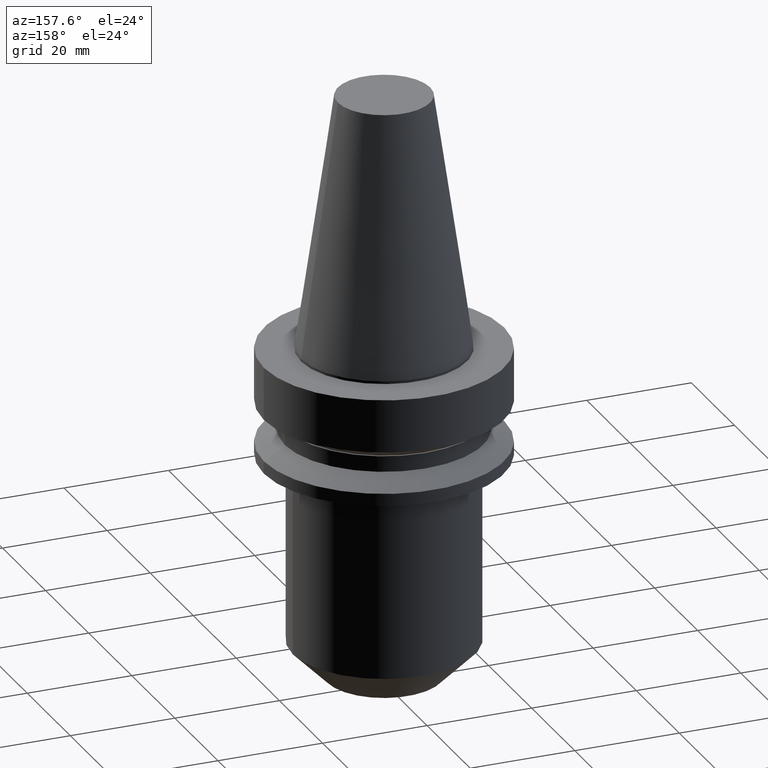
[diagram: clean part render]
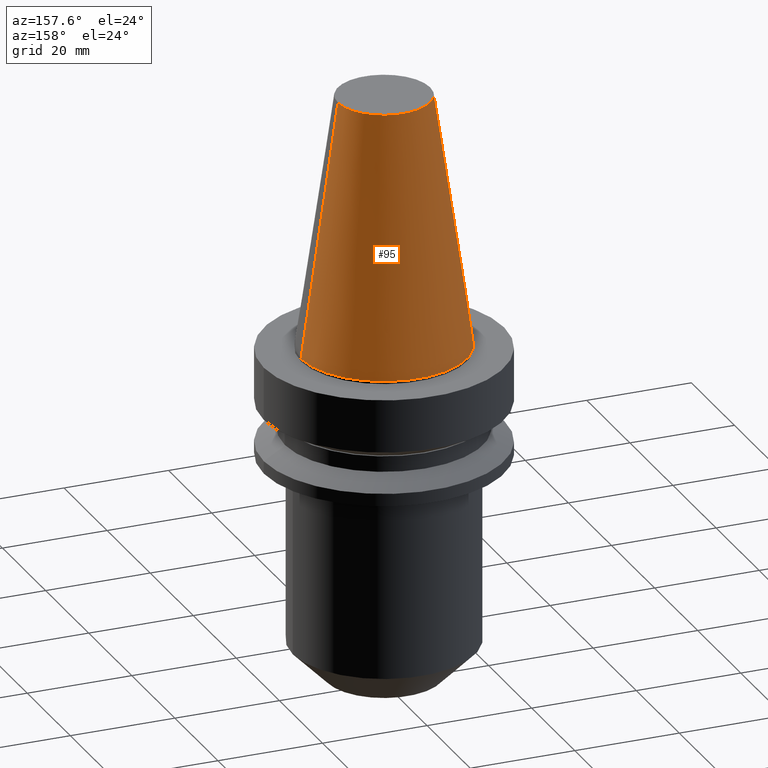
[diagram: same view with one face highlighted and labeled with its STEP entity id]
A machine part, auxiliary view. The second image highlights one B-rep face of the part: STEP entity #95.
In plain terms, the highlighted conical surface has half-angle 8.297 deg.
Its self-contained STEP definition (entity closure, byte-faithful):
#15 = DIRECTION ( 'NONE',  ( 0.000000000000000000, 0.000000000000000000, -1.000000000000000000 ) ) ;
#24 = VECTOR ( 'NONE', #745, 1000.000000000000114 ) ;
#43 = LINE ( 'NONE', #577, #24 ) ;
#71 = CARTESIAN_POINT ( 'NONE',  ( 15.87500000000000000, 1.944126793646423238E-15, 0.000000000000000000 ) ) ;
#86 = AXIS2_PLACEMENT_3D ( 'NONE', #580, #292, #342 ) ;
#94 = DIRECTION ( 'NONE',  ( 0.1443082234293875943, 1.767266039134405996E-17, -0.9895327870518761948 ) ) ;
#95 = ADVANCED_FACE ( 'NONE', ( #323 ), #212, .T. ) ;
#126 = ORIENTED_EDGE ( 'NONE', *, *, #209, .F. ) ;
#155 = CARTESIAN_POINT ( 'NONE',  ( -8.816600212367498912, 0.000000000000000000, 48.39999999999999858 ) ) ;
#170 = EDGE_CURVE ( 'NONE', #515, #493, #624, .T. ) ;
#176 = EDGE_CURVE ( 'NONE', #493, #321, #415, .T. ) ;
#207 = ORIENTED_EDGE ( 'NONE', *, *, #563, .F. ) ;
#209 = EDGE_CURVE ( 'NONE', #318, #321, #43, .T. ) ;
#212 = CONICAL_SURFACE ( 'NONE', #730, 15.87500000000000000, 0.1448138426689024039 ) ;
#242 = CIRCLE ( 'NONE', #709, 8.816600212367498912 ) ;
#253 = ORIENTED_EDGE ( 'NONE', *, *, #176, .T. ) ;
#265 = CARTESIAN_POINT ( 'NONE',  ( 8.816600212367498912, 1.511924458295098338E-15, 48.39999999999999858 ) ) ;
#292 = DIRECTION ( 'NONE',  ( -0.000000000000000000, -0.000000000000000000, 1.000000000000000000 ) ) ;
#318 = VERTEX_POINT ( 'NONE', #155 ) ;
#321 = VERTEX_POINT ( 'NONE', #622 ) ;
#323 = FACE_OUTER_BOUND ( 'NONE', #658, .T. ) ;
#342 = DIRECTION ( 'NONE',  ( 1.000000000000000000, 0.000000000000000000, 0.000000000000000000 ) ) ;
#374 = ORIENTED_EDGE ( 'NONE', *, *, #170, .T. ) ;
#415 = CIRCLE ( 'NONE', #86, 15.87500000000000000 ) ;
#455 = VECTOR ( 'NONE', #94, 1000.000000000000114 ) ;
#489 = CARTESIAN_POINT ( 'NONE',  ( 0.000000000000000000, 0.000000000000000000, 48.39999999999999858 ) ) ;
#493 = VERTEX_POINT ( 'NONE', #71 ) ;
#515 = VERTEX_POINT ( 'NONE', #265 ) ;
#546 = DIRECTION ( 'NONE',  ( 1.000000000000000000, 0.000000000000000000, 0.000000000000000000 ) ) ;
#560 = DIRECTION ( 'NONE',  ( -1.000000000000000000, 0.000000000000000000, 0.000000000000000000 ) ) ;
#563 = EDGE_CURVE ( 'NONE', #515, #318, #242, .T. ) ;
#577 = CARTESIAN_POINT ( 'NONE',  ( -15.87500000000000000, 0.000000000000000000, 0.000000000000000000 ) ) ;
#580 = CARTESIAN_POINT ( 'NONE',  ( 0.000000000000000000, 0.000000000000000000, 0.000000000000000000 ) ) ;
#611 = CARTESIAN_POINT ( 'NONE',  ( 0.000000000000000000, 0.000000000000000000, 0.000000000000000000 ) ) ;
#622 = CARTESIAN_POINT ( 'NONE',  ( -15.87500000000000000, 0.000000000000000000, 0.000000000000000000 ) ) ;
#624 = LINE ( 'NONE', #694, #455 ) ;
#658 = EDGE_LOOP ( 'NONE', ( #207, #374, #253, #126 ) ) ;
#694 = CARTESIAN_POINT ( 'NONE',  ( 15.87500000000000000, 1.944126793646423238E-15, 0.000000000000000000 ) ) ;
#709 = AXIS2_PLACEMENT_3D ( 'NONE', #489, #738, #546 ) ;
#730 = AXIS2_PLACEMENT_3D ( 'NONE', #611, #15, #560 ) ;
#738 = DIRECTION ( 'NONE',  ( -0.000000000000000000, -0.000000000000000000, 1.000000000000000000 ) ) ;
#745 = DIRECTION ( 'NONE',  ( -0.1443082234293875943, 0.000000000000000000, -0.9895327870518761948 ) ) ;